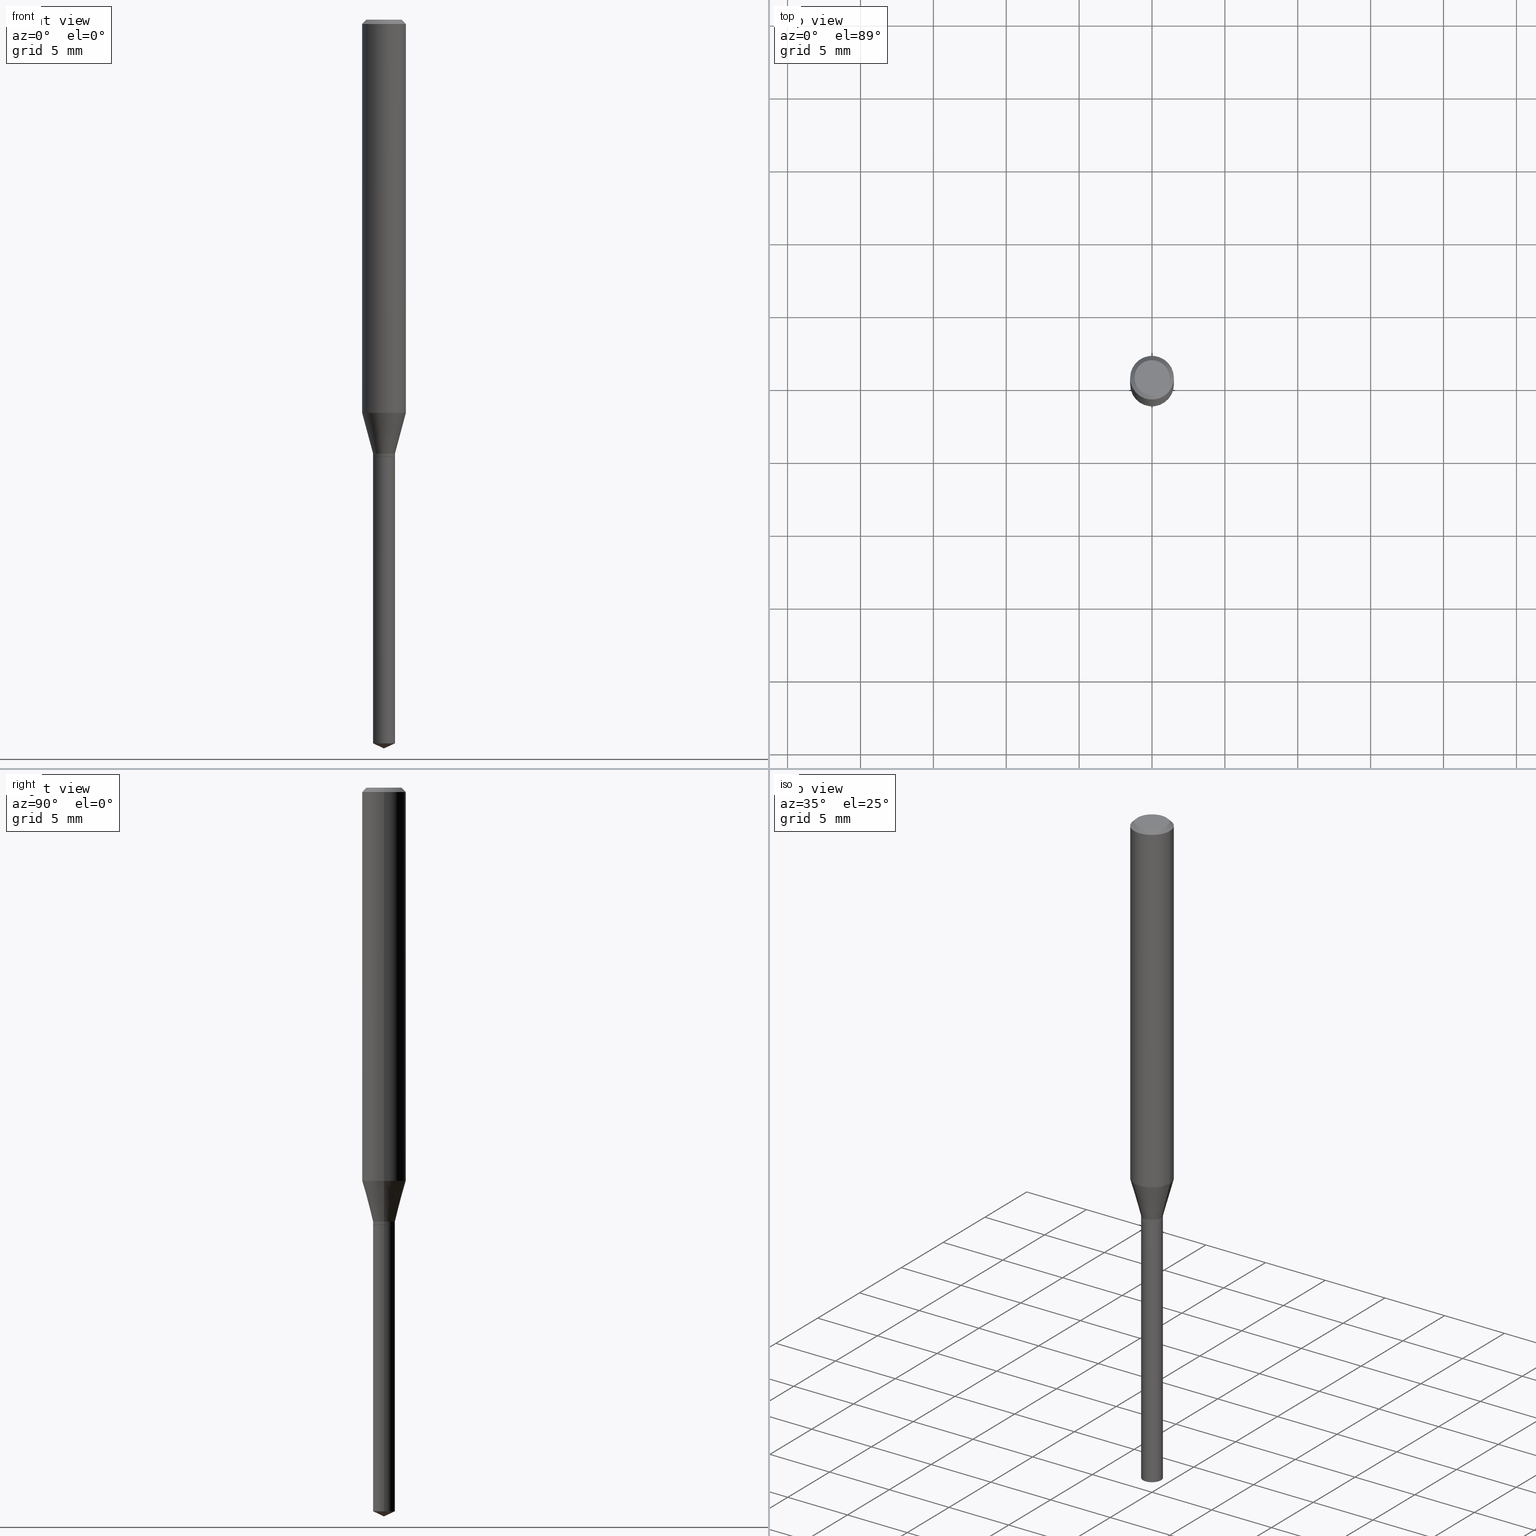
[diagram: canonical four-view strip — front | top / right | iso, engineering-drawing reading convention]
A machine part, canonical four-view strip (front | top / right | iso — engineering-drawing reading convention). The complete STEP part file that produces these views, byte-faithful:
ISO-10303-21;
HEADER;
FILE_DESCRIPTION (( 'STEP AP203' ),
    '1' );
FILE_NAME ('07885.STEP',
    '2024-04-24T05:19:50',
    ( '' ),
    ( '' ),
    'SwSTEP 2.0',
    'SolidWorks 2023',
    '' );
FILE_SCHEMA (( 'CONFIG_CONTROL_DESIGN' ));
ENDSEC;

DATA;
#1 = DIRECTION ( 'NONE',  ( -0.7071067811864326647, 7.493145998869937642E-15, 0.7071067811866621478 ) ) ;
#2 = LINE ( 'NONE', #313, #307 ) ;
#3 = LINE ( 'NONE', #391, #469 ) ;
#4 = DIRECTION ( 'NONE',  ( -2.445468806185136877E-29, 3.491481338843145188E-15, 1.000000000000000000 ) ) ;
#5 = EDGE_CURVE ( 'NONE', #267, #316, #457, .T. ) ;
#6 = FACE_OUTER_BOUND ( 'NONE', #91, .T. ) ;
#7 = AXIS2_PLACEMENT_3D ( 'NONE', #26, #58, #114 ) ;
#8 = ORIENTED_EDGE ( 'NONE', *, *, #383, .T. ) ;
#9 = ADVANCED_FACE ( 'NONE', ( #6 ), #56, .T. ) ;
#10 = AXIS2_PLACEMENT_3D ( 'NONE', #373, #274, #487 ) ;
#11 = APPROVAL_DATE_TIME ( #365, #250 ) ;
#12 = VERTEX_POINT ( 'NONE', #38 ) ;
#13 = CC_DESIGN_PERSON_AND_ORGANIZATION_ASSIGNMENT ( #481, #146, ( #25 ) ) ;
#14 = EDGE_LOOP ( 'NONE', ( #31, #453 ) ) ;
#15 = CARTESIAN_POINT ( 'NONE',  ( 2.888098660104662452E-31, -4.123439461173777798E-17, -0.01181000000000006697 ) ) ;
#16 = ADVANCED_FACE ( 'NONE', ( #430 ), #82, .T. ) ;
#17 = EDGE_LOOP ( 'NONE', ( #215, #331, #441, #47 ) ) ;
#18 = DIRECTION ( 'NONE',  ( -2.445468806185136597E-29, 3.491481338843145583E-15, 1.000000000000000000 ) ) ;
#19 = COORDINATED_UNIVERSAL_TIME_OFFSET ( 5, 0, .BEHIND. ) ;
#20 = AXIS2_PLACEMENT_3D ( 'NONE', #144, #179, #291 ) ;
#21 = ORIENTED_EDGE ( 'NONE', *, *, #199, .F. ) ;
#22 = PRODUCT_DEFINITION ( 'UNKNOWN', '', #428, #480 ) ;
#23 = PERSON_AND_ORGANIZATION ( #37, #410 ) ;
#24 = FACE_OUTER_BOUND ( 'NONE', #427, .T. ) ;
#25 = PRODUCT ( '07885', '07885', '', ( #152 ) ) ;
#26 = CARTESIAN_POINT ( 'NONE',  ( -9.896477185336934595E-30, -9.677292336186917248E-15, -1.181099999999999817 ) ) ;
#27 = CARTESIAN_POINT ( 'NONE',  ( -0.05904999999999999832, 3.711095515056362547E-16, -0.01181000000000006697 ) ) ;
#28 = VECTOR ( 'NONE', #132, 39.37007874015748143 ) ;
#29 = CALENDAR_DATE ( 2024, 24, 4 ) ;
#30 = ORIENTED_EDGE ( 'NONE', *, *, #408, .F. ) ;
#31 = ORIENTED_EDGE ( 'NONE', *, *, #425, .T. ) ;
#32 = AXIS2_PLACEMENT_3D ( 'NONE', #333, #476, #298 ) ;
#33 = CARTESIAN_POINT ( 'NONE',  ( 8.265746106709734507E-48, -1.180129479067563789E-33, -3.380025165646692144E-19 ) ) ;
#34 = ORIENTED_EDGE ( 'NONE', *, *, #61, .T. ) ;
#35 = DIRECTION ( 'NONE',  ( -2.445468806185136597E-29, 3.491481338843145583E-15, 1.000000000000000000 ) ) ;
#36 = CARTESIAN_POINT ( 'NONE',  ( -0.02904999999999999943, -3.917375944569329776E-15, -1.181099999999999817 ) ) ;
#37 = PERSON ( 'UNSPECIFIED', 'UNSPECIFIED', 'UNSPECIFIED', ('UNSPECIFIED'), ('UNSPECIFIED'), ('UNSPECIFIED') ) ;
#38 = CARTESIAN_POINT ( 'NONE',  ( 0.05904999999999999832, -4.535783407291118600E-16, -0.01181000000000006697 ) ) ;
#39 = ADVANCED_FACE ( 'NONE', ( #490 ), #268, .T. ) ;
#40 = CARTESIAN_POINT ( 'NONE',  ( 0.02954999999999999294, -7.031217075059099515E-15, -1.954720608701519868 ) ) ;
#41 = DIRECTION ( 'NONE',  ( 1.000000000000000000, -6.982962677686266711E-15, 0.000000000000000000 ) ) ;
#42 = CARTESIAN_POINT ( 'NONE',  ( -0.02955000000000001029, 2.099653784171096780E-16, -1.453545319170325076E-30 ) ) ;
#43 = DIRECTION ( 'NONE',  ( -0.9063077870366488265, 7.915267918739016209E-15, 0.4226182617407016062 ) ) ;
#44 = APPROVAL_PERSON_ORGANIZATION ( #374, #466, #370 ) ;
#45 = DIRECTION ( 'NONE',  ( 1.000000000000000000, -6.982962677686259611E-15, 0.000000000000000000 ) ) ;
#46 = DIRECTION ( 'NONE',  ( -2.445468806185136597E-29, 3.491481338843145583E-15, 1.000000000000000000 ) ) ;
#47 = ORIENTED_EDGE ( 'NONE', *, *, #77, .F. ) ;
#48 = CONICAL_SURFACE ( 'NONE', #341, 0.02955000000000001029, 0.2617993877991501295 ) ;
#49 = VECTOR ( 'NONE', #134, 39.37007874015748854 ) ;
#50 = ORIENTED_EDGE ( 'NONE', *, *, #408, .T. ) ;
#51 = EDGE_CURVE ( 'NONE', #335, #267, #109, .T. ) ;
#52 = ORIENTED_EDGE ( 'NONE', *, *, #376, .T. ) ;
#53 = DIRECTION ( 'NONE',  ( -2.445468806185136597E-29, 3.491481338843145583E-15, 1.000000000000000000 ) ) ;
#54 = ORIENTED_EDGE ( 'NONE', *, *, #445, .T. ) ;
#55 = CIRCLE ( 'NONE', #233, 0.02954999999999999988 ) ;
#56 = CONICAL_SURFACE ( 'NONE', #317, 84.42940631927342565, 1.134464013796311788 ) ;
#57 = ORIENTED_EDGE ( 'NONE', *, *, #230, .F. ) ;
#58 = DIRECTION ( 'NONE',  ( -2.438088387897960049E-29, 3.491481338843145188E-15, 1.000000000000000000 ) ) ;
#59 = DIRECTION ( 'NONE',  ( 0.000000000000000000, 0.000000000000000000, 1.000000000000000000 ) ) ;
#60 = DIRECTION ( 'NONE',  ( -1.000000000000000000, 6.982962677686265922E-15, -4.876176775795935793E-29 ) ) ;
#61 = EDGE_CURVE ( 'NONE', #446, #276, #332, .T. ) ;
#62 = APPROVAL ( #74, 'UNSPECIFIED' ) ;
#63 =( CONVERSION_BASED_UNIT ( 'INCH', #149 ) LENGTH_UNIT ( ) NAMED_UNIT ( #321 ) );
#64 = ORIENTED_EDGE ( 'NONE', *, *, #142, .T. ) ;
#65 = APPROVAL_PERSON_ORGANIZATION ( #222, #62, #171 ) ;
#66 = ADVANCED_FACE ( 'NONE', ( #310 ), #285, .T. ) ;
#67 = DIRECTION ( 'NONE',  ( -2.445468806185136877E-29, 3.491481338843145188E-15, 1.000000000000000000 ) ) ;
#68 =( LENGTH_UNIT ( ) NAMED_UNIT ( * ) SI_UNIT ( $, .METRE. ) );
#69 = ORIENTED_EDGE ( 'NONE', *, *, #295, .F. ) ;
#70 = CALENDAR_DATE ( 2024, 24, 4 ) ;
#71 = CC_DESIGN_DATE_AND_TIME_ASSIGNMENT ( #302, #292, ( #252 ) ) ;
#72 = CARTESIAN_POINT ( 'NONE',  ( -0.05905000000000006771, 4.195754854663396409E-16, -2.904631170795525045E-30 ) ) ;
#73 = CARTESIAN_POINT ( 'NONE',  ( 0.05905000000000006771, -4.123439461173745257E-16, 2.879382386107503723E-30 ) ) ;
#74 = APPROVAL_STATUS ( 'not_yet_approved' ) ;
#75 = VECTOR ( 'NONE', #232, 39.37007874015748143 ) ;
#76 = CARTESIAN_POINT ( 'NONE',  ( 0.02955000000000001029, -4.299060972517564294E-15, -1.172199999999999909 ) ) ;
#77 = EDGE_CURVE ( 'NONE', #479, #316, #55, .T. ) ;
#78 = AXIS2_PLACEMENT_3D ( 'NONE', #311, #231, #390 ) ;
#79 = APPLICATION_CONTEXT ( 'configuration controlled 3d designs of mechanical parts and assemblies' ) ;
#80 = CARTESIAN_POINT ( 'NONE',  ( 8.265746106709734507E-48, -1.180129479067563789E-33, -3.380025165646692144E-19 ) ) ;
#81 = CARTESIAN_POINT ( 'NONE',  ( 0.04724000000000000421, -3.852183633974369345E-16, -3.380025165621689721E-19 ) ) ;
#82 = CYLINDRICAL_SURFACE ( 'NONE', #417, 0.02954999999999999988 ) ;
#83 = CIRCLE ( 'NONE', #200, 0.02955000000000001029 ) ;
#84 = MANIFOLD_SOLID_BREP ( 'Body-Move/Copy2[2]', #325 ) ;
#85 = CARTESIAN_POINT ( 'NONE',  ( -0.02954999999999999294, -6.614905149516361336E-15, -1.954720608701519868 ) ) ;
#86 = ORIENTED_EDGE ( 'NONE', *, *, #287, .T. ) ;
#87 = MANIFOLD_SOLID_BREP ( 'Body-Move/Copy2[1]', #260 ) ;
#88 = CC_DESIGN_PERSON_AND_ORGANIZATION_ASSIGNMENT ( #169, #327, ( #428 ) ) ;
#89 = VERTEX_POINT ( 'NONE', #81 ) ;
#90 = PERSON_AND_ORGANIZATION_ROLE ( 'design_supplier' ) ;
#91 = EDGE_LOOP ( 'NONE', ( #133, #438, #140 ) ) ;
#92 = EDGE_LOOP ( 'NONE', ( #432, #377, #52, #50 ) ) ;
#93 = EDGE_CURVE ( 'NONE', #470, #335, #2, .T. ) ;
#94 = AXIS2_PLACEMENT_3D ( 'NONE', #421, #304, #450 ) ;
#95 = VECTOR ( 'NONE', #406, 39.37007874015748143 ) ;
#96 = PERSON_AND_ORGANIZATION ( #37, #410 ) ;
#97 = EDGE_LOOP ( 'NONE', ( #54, #100, #474, #293 ) ) ;
#98 = ORIENTED_EDGE ( 'NONE', *, *, #199, .T. ) ;
#99 = LINE ( 'NONE', #258, #95 ) ;
#100 = ORIENTED_EDGE ( 'NONE', *, *, #182, .T. ) ;
#101 = AXIS2_PLACEMENT_3D ( 'NONE', #155, #461, #240 ) ;
#102 = AXIS2_PLACEMENT_3D ( 'NONE', #407, #59, #420 ) ;
#103 = ADVANCED_FACE ( 'NONE', ( #201 ), #460, .T. ) ;
#104 = CARTESIAN_POINT ( 'NONE',  ( 2.866578534610217158E-29, -4.092714425391935472E-15, -1.172199999999999909 ) ) ;
#105 = APPLICATION_CONTEXT ( 'configuration controlled 3d designs of mechanical parts and assemblies' ) ;
#106 = CARTESIAN_POINT ( 'NONE',  ( -0.02954999999999999988, -3.913823230890528878E-15, -1.181099999999999817 ) ) ;
#107 = DIRECTION ( 'NONE',  ( 1.000000000000000000, -6.982962677686265922E-15, 4.876176775795935793E-29 ) ) ;
#108 = VERTEX_POINT ( 'NONE', #467 ) ;
#109 = CIRCLE ( 'NONE', #101, 0.02954999999999999988 ) ;
#110 = AXIS2_PLACEMENT_3D ( 'NONE', #416, #452, #107 ) ;
#111 = FACE_OUTER_BOUND ( 'NONE', #405, .T. ) ;
#112 = EDGE_LOOP ( 'NONE', ( #402, #34, #8, #379 ) ) ;
#113 = DIRECTION ( 'NONE',  ( 1.000000000000000000, -6.982962677686259611E-15, 0.000000000000000000 ) ) ;
#114 = DIRECTION ( 'NONE',  ( 1.000000000000000000, -6.982962677686265922E-15, 4.876176775795935793E-29 ) ) ;
#115 = CARTESIAN_POINT ( 'NONE',  ( 2.888343206985264877E-29, -4.123788609307639024E-15, -1.181099999999999817 ) ) ;
#116 = DIRECTION ( 'NONE',  ( 1.000000000000000000, -6.982962677686265922E-15, 4.876176775795935793E-29 ) ) ;
#117 = DIRECTION ( 'NONE',  ( -2.445468806185136597E-29, 3.491481338843145583E-15, 1.000000000000000000 ) ) ;
#118 = DIRECTION ( 'NONE',  ( -2.445468806185136877E-29, 3.491481338843145188E-15, 1.000000000000000000 ) ) ;
#119 = CIRCLE ( 'NONE', #485, 0.05905000000000013710 ) ;
#120 = VERTEX_POINT ( 'NONE', #123 ) ;
#121 = DIRECTION ( 'NONE',  ( 2.445468806185136597E-29, -3.491481338843145583E-15, -1.000000000000000000 ) ) ;
#122 = CARTESIAN_POINT ( 'NONE',  ( 2.887120472582171515E-29, -4.122042868638216732E-15, -1.180599999999999650 ) ) ;
#123 = CARTESIAN_POINT ( 'NONE',  ( -0.02955000000000001029, -3.897413268597965956E-15, -1.172199999999999909 ) ) ;
#124 = EDGE_CURVE ( 'NONE', #385, #409, #424, .T. ) ;
#125 = ADVANCED_BREP_SHAPE_REPRESENTATION ( '07885', ( #87, #84, #102 ), #128 ) ;
#126 = CARTESIAN_POINT ( 'NONE',  ( -9.146439411113230710E-28, 1.305869142145323662E-13, 37.40157874015748263 ) ) ;
#127 = ORIENTED_EDGE ( 'NONE', *, *, #376, .F. ) ;
#128 =( GEOMETRIC_REPRESENTATION_CONTEXT ( 3 ) GLOBAL_UNCERTAINTY_ASSIGNED_CONTEXT ( ( #204 ) ) GLOBAL_UNIT_ASSIGNED_CONTEXT ( ( #63, #305, #226 ) ) REPRESENTATION_CONTEXT ( 'NONE', 'WORKASPACE' ) );
#129 = VECTOR ( 'NONE', #1, 39.37007874015748854 ) ;
#130 = EDGE_LOOP ( 'NONE', ( #86, #363 ) ) ;
#131 = EDGE_LOOP ( 'NONE', ( #259, #443, #209 ) ) ;
#132 = DIRECTION ( 'NONE',  ( -0.7071067811865454633, 2.468850131082235367E-15, -0.7071067811865495711 ) ) ;
#133 = ORIENTED_EDGE ( 'NONE', *, *, #93, .F. ) ;
#134 = DIRECTION ( 'NONE',  ( 0.7071067811864326647, -2.468850131081054837E-15, 0.7071067811866621478 ) ) ;
#135 = CIRCLE ( 'NONE', #489, 0.04724000000000000421 ) ;
#136 = CC_DESIGN_APPROVAL ( #62, ( #22 ) ) ;
#137 = VERTEX_POINT ( 'NONE', #195 ) ;
#138 = DIRECTION ( 'NONE',  ( 1.000000000000000000, -6.982962677686266711E-15, 0.000000000000000000 ) ) ;
#139 = COORDINATED_UNIVERSAL_TIME_OFFSET ( 5, 0, .BEHIND. ) ;
#140 = ORIENTED_EDGE ( 'NONE', *, *, #51, .F. ) ;
#141 = DIRECTION ( 'NONE',  ( -2.445468806185136597E-29, 3.491481338843145583E-15, 1.000000000000000000 ) ) ;
#142 = EDGE_CURVE ( 'NONE', #89, #12, #350, .T. ) ;
#143 = APPROVAL_ROLE ( '' ) ;
#144 = CARTESIAN_POINT ( 'NONE',  ( 2.888343206985264877E-29, -4.123788609307639024E-15, -1.181099999999999817 ) ) ;
#145 = CARTESIAN_POINT ( 'NONE',  ( 2.888098660104662452E-31, -4.123439461173777798E-17, -0.01181000000000006697 ) ) ;
#146 = PERSON_AND_ORGANIZATION_ROLE ( 'design_owner' ) ;
#147 = DIRECTION ( 'NONE',  ( -2.445468806185136597E-29, 3.491481338843145583E-15, 1.000000000000000000 ) ) ;
#148 = ADVANCED_FACE ( 'NONE', ( #229 ), #270, .F. ) ;
#149 = LENGTH_MEASURE_WITH_UNIT ( LENGTH_MEASURE( 0.02539999999999999897 ), #68 );
#150 = PERSON_AND_ORGANIZATION_ROLE ( 'classification_officer' ) ;
#151 = CC_DESIGN_DATE_AND_TIME_ASSIGNMENT ( #412, #205, ( #22 ) ) ;
#152 = MECHANICAL_CONTEXT ( 'NONE', #79, 'mechanical' ) ;
#153 = AXIS2_PLACEMENT_3D ( 'NONE', #369, #18, #175 ) ;
#154 = LOCAL_TIME ( 1, 19, 50.00000000000000000, #219 ) ;
#155 = CARTESIAN_POINT ( 'NONE',  ( 4.780208273386789219E-29, -6.824870527933470693E-15, -1.954720608701519868 ) ) ;
#156 = CARTESIAN_POINT ( 'NONE',  ( 2.888343206985264316E-29, -4.123788609307638235E-15, -1.181099999999999817 ) ) ;
#157 = CARTESIAN_POINT ( 'NONE',  ( 0.02954999999999999988, -4.330135156433267846E-15, -1.181099999999999817 ) ) ;
#158 = DIRECTION ( 'NONE',  ( -2.445468806185136597E-29, 3.491481338843145583E-15, 1.000000000000000000 ) ) ;
#159 = FACE_OUTER_BOUND ( 'NONE', #399, .T. ) ;
#160 = CONICAL_SURFACE ( 'NONE', #243, 0.02955000000000001029, 0.2617993877991501295 ) ;
#161 = DIRECTION ( 'NONE',  ( -2.445468806185136597E-29, 3.491481338843145583E-15, 1.000000000000000000 ) ) ;
#162 = ADVANCED_FACE ( 'NONE', ( #340 ), #48, .T. ) ;
#163 = DIRECTION ( 'NONE',  ( 1.000000000000000000, -6.982962677686261977E-15, 0.000000000000000000 ) ) ;
#164 = DIRECTION ( 'NONE',  ( -2.445468806185136597E-29, 3.491481338843145583E-15, 1.000000000000000000 ) ) ;
#165 = EDGE_LOOP ( 'NONE', ( #322, #64, #290, #127 ) ) ;
#166 = AXIS2_PLACEMENT_3D ( 'NONE', #357, #117, #163 ) ;
#167 = CIRCLE ( 'NONE', #455, 0.05904999999999999832 ) ;
#168 = EDGE_CURVE ( 'NONE', #276, #446, #277, .T. ) ;
#169 = PERSON_AND_ORGANIZATION ( #37, #410 ) ;
#170 = ORIENTED_EDGE ( 'NONE', *, *, #256, .F. ) ;
#171 = APPROVAL_ROLE ( '' ) ;
#172 = ORIENTED_EDGE ( 'NONE', *, *, #256, .T. ) ;
#173 = CARTESIAN_POINT ( 'NONE',  ( -0.05904999999999999832, -1.455200734719437602E-15, -0.01181000000000006697 ) ) ;
#174 = ORIENTED_EDGE ( 'NONE', *, *, #193, .F. ) ;
#175 = DIRECTION ( 'NONE',  ( 1.000000000000000000, -6.982962677686261977E-15, 0.000000000000000000 ) ) ;
#176 = AXIS2_PLACEMENT_3D ( 'NONE', #126, #434, #239 ) ;
#177 = EDGE_LOOP ( 'NONE', ( #170, #254, #247, #394 ) ) ;
#178 = CARTESIAN_POINT ( 'NONE',  ( 2.866578534610217158E-29, -4.092714425391935472E-15, -1.172199999999999909 ) ) ;
#179 = DIRECTION ( 'NONE',  ( -2.445468806185136597E-29, 3.491481338843145583E-15, 1.000000000000000000 ) ) ;
#180 = FACE_OUTER_BOUND ( 'NONE', #436, .T. ) ;
#181 = VECTOR ( 'NONE', #359, 39.37007874015748143 ) ;
#182 = EDGE_CURVE ( 'NONE', #335, #479, #224, .T. ) ;
#183 = VECTOR ( 'NONE', #67, 39.37007874015748143 ) ;
#184 = PLANE ( 'NONE',  #78 ) ;
#185 = DIRECTION ( 'NONE',  ( 1.000000000000000000, -6.982962677686259611E-15, 0.000000000000000000 ) ) ;
#186 = ORIENTED_EDGE ( 'NONE', *, *, #214, .T. ) ;
#187 = CYLINDRICAL_SURFACE ( 'NONE', #301, 0.02955000000000001029 ) ;
#188 = ORIENTED_EDGE ( 'NONE', *, *, #463, .F. ) ;
#189 = DIRECTION ( 'NONE',  ( -2.445468806185136597E-29, 3.491481338843145583E-15, 1.000000000000000000 ) ) ;
#190 = CONICAL_SURFACE ( 'NONE', #176, 84.42940631927342565, 1.134464013796311788 ) ;
#191 = CARTESIAN_POINT ( 'NONE',  ( 4.813905344975441835E-29, -6.872981015512731707E-15, -1.968500000000000139 ) ) ;
#192 = EDGE_LOOP ( 'NONE', ( #257, #172, #472, #188 ) ) ;
#193 = EDGE_CURVE ( 'NONE', #361, #12, #393, .T. ) ;
#194 = DIRECTION ( 'NONE',  ( 1.000000000000000000, -6.982962677686266711E-15, 4.876185090822587894E-29 ) ) ;
#195 = CARTESIAN_POINT ( 'NONE',  ( 0.02955000000000001029, -4.328389415763845553E-15, -1.180599999999999650 ) ) ;
#196 = DIRECTION ( 'NONE',  ( -2.445468806185136877E-29, 3.491481338843145188E-15, 1.000000000000000000 ) ) ;
#197 = DIRECTION ( 'NONE',  ( -2.445468806185136597E-29, 3.491481338843145583E-15, 1.000000000000000000 ) ) ;
#198 = DIRECTION ( 'NONE',  ( 1.000000000000000000, -6.982962677686261977E-15, 0.000000000000000000 ) ) ;
#199 = EDGE_CURVE ( 'NONE', #108, #120, #234, .T. ) ;
#200 = AXIS2_PLACEMENT_3D ( 'NONE', #315, #164, #45 ) ;
#201 = FACE_OUTER_BOUND ( 'NONE', #17, .T. ) ;
#202 = PRODUCT_RELATED_PRODUCT_CATEGORY ( 'detail', '', ( #25 ) ) ;
#203 = DIRECTION ( 'NONE',  ( -2.445468806185136597E-29, 3.491481338843145583E-15, 1.000000000000000000 ) ) ;
#204 = UNCERTAINTY_MEASURE_WITH_UNIT (LENGTH_MEASURE( 1.000000000000000082E-05 ), #63, 'distance_accuracy_value', 'NONE');
#205 = DATE_TIME_ROLE ( 'creation_date' ) ;
#206 = VERTEX_POINT ( 'NONE', #465 ) ;
#207 = VECTOR ( 'NONE', #4, 39.37007874015748143 ) ;
#208 = CC_DESIGN_APPROVAL ( #466, ( #252 ) ) ;
#209 = ORIENTED_EDGE ( 'NONE', *, *, #445, .F. ) ;
#210 = CARTESIAN_POINT ( 'NONE',  ( 0.000000000000000000, 0.000000000000000000, 0.000000000000000000 ) ) ;
#211 = ORIENTED_EDGE ( 'NONE', *, *, #230, .T. ) ;
#212 = DIRECTION ( 'NONE',  ( 1.000000000000000000, -6.982962677686266711E-15, 4.876176775795936353E-29 ) ) ;
#213 = APPROVAL_STATUS ( 'not_yet_approved' ) ;
#214 = EDGE_CURVE ( 'NONE', #137, #108, #286, .T. ) ;
#215 = ORIENTED_EDGE ( 'NONE', *, *, #182, .F. ) ;
#216 = LINE ( 'NONE', #27, #28 ) ;
#217 = CYLINDRICAL_SURFACE ( 'NONE', #462, 0.05905000000000006771 ) ;
#218 = DIRECTION ( 'NONE',  ( 1.000000000000000000, -6.982962677686266711E-15, 4.876185090822587894E-29 ) ) ;
#219 = COORDINATED_UNIVERSAL_TIME_OFFSET ( 5, 0, .BEHIND. ) ;
#220 = ORIENTED_EDGE ( 'NONE', *, *, #168, .T. ) ;
#221 = FACE_OUTER_BOUND ( 'NONE', #14, .T. ) ;
#222 = PERSON_AND_ORGANIZATION ( #37, #410 ) ;
#223 = AXIS2_PLACEMENT_3D ( 'NONE', #384, #422, #343 ) ;
#224 = LINE ( 'NONE', #106, #183 ) ;
#225 = LOCAL_TIME ( 1, 19, 50.00000000000000000, #289 ) ;
#226 =( NAMED_UNIT ( * ) SI_UNIT ( $, .STERADIAN. ) SOLID_ANGLE_UNIT ( ) );
#227 = DIRECTION ( 'NONE',  ( 0.2588190451025214611, 1.565188264969621573E-15, 0.9659258262890682012 ) ) ;
#228 = APPROVAL_DATE_TIME ( #415, #466 ) ;
#229 = FACE_OUTER_BOUND ( 'NONE', #130, .T. ) ;
#230 = EDGE_CURVE ( 'NONE', #137, #206, #323, .T. ) ;
#231 = DIRECTION ( 'NONE',  ( 2.438088387897960049E-29, -3.491481338843145188E-15, -1.000000000000000000 ) ) ;
#232 = DIRECTION ( 'NONE',  ( -2.445468806185136877E-29, 3.491481338843145188E-15, 1.000000000000000000 ) ) ;
#233 = AXIS2_PLACEMENT_3D ( 'NONE', #156, #395, #387 ) ;
#234 = LINE ( 'NONE', #42, #207 ) ;
#235 = CIRCLE ( 'NONE', #32, 0.05905000000000013710 ) ;
#236 = DIRECTION ( 'NONE',  ( -2.445468806185136597E-29, 3.491481338843145583E-15, 1.000000000000000000 ) ) ;
#237 = ADVANCED_FACE ( 'NONE', ( #358 ), #190, .T. ) ;
#238 = CARTESIAN_POINT ( 'NONE',  ( 2.888343206985264877E-29, -4.123788609307639024E-15, -1.181099999999999817 ) ) ;
#239 = DIRECTION ( 'NONE',  ( 1.000000000000000000, -6.982962677686266711E-15, 0.000000000000000000 ) ) ;
#240 = DIRECTION ( 'NONE',  ( 1.000000000000000000, -6.982962677686261977E-15, 0.000000000000000000 ) ) ;
#241 = DIRECTION ( 'NONE',  ( -1.000000000000000000, 6.982962677686266711E-15, 0.000000000000000000 ) ) ;
#242 = CARTESIAN_POINT ( 'NONE',  ( 0.05904999999999999832, -4.463468013801466955E-16, -0.01181000000000006697 ) ) ;
#243 = AXIS2_PLACEMENT_3D ( 'NONE', #178, #141, #255 ) ;
#244 = LOCAL_TIME ( 1, 19, 50.00000000000000000, #139 ) ;
#245 = ORIENTED_EDGE ( 'NONE', *, *, #431, .T. ) ;
#246 = PRODUCT_DEFINITION_SHAPE ( 'NONE', 'NONE',  #22 ) ;
#247 = ORIENTED_EDGE ( 'NONE', *, *, #463, .T. ) ;
#248 = SECURITY_CLASSIFICATION_LEVEL ( 'unclassified' ) ;
#249 = ORIENTED_EDGE ( 'NONE', *, *, #124, .F. ) ;
#250 = APPROVAL ( #299, 'UNSPECIFIED' ) ;
#251 = AXIS2_PLACEMENT_3D ( 'NONE', #122, #35, #352 ) ;
#252 = SECURITY_CLASSIFICATION ( '', '', #248 ) ;
#253 = CALENDAR_DATE ( 2024, 24, 4 ) ;
#254 = ORIENTED_EDGE ( 'NONE', *, *, #482, .T. ) ;
#255 = DIRECTION ( 'NONE',  ( 1.000000000000000000, -6.982962677686259611E-15, 0.000000000000000000 ) ) ;
#256 = EDGE_CURVE ( 'NONE', #120, #385, #3, .T. ) ;
#257 = ORIENTED_EDGE ( 'NONE', *, *, #400, .T. ) ;
#258 = CARTESIAN_POINT ( 'NONE',  ( 4.813905344975441835E-29, -6.872981015512731707E-15, -1.968500000000000139 ) ) ;
#259 = ORIENTED_EDGE ( 'NONE', *, *, #435, .F. ) ;
#260 = CLOSED_SHELL ( 'NONE', ( #16, #237, #9, #103, #458 ) ) ;
#261 = CALENDAR_DATE ( 2024, 24, 4 ) ;
#262 = DIRECTION ( 'NONE',  ( -2.445468806185136597E-29, 3.491481338843145583E-15, 1.000000000000000000 ) ) ;
#263 = ORIENTED_EDGE ( 'NONE', *, *, #400, .F. ) ;
#264 = CARTESIAN_POINT ( 'NONE',  ( 4.132873053354867254E-48, -5.900647395337818946E-34, -1.690012582823346072E-19 ) ) ;
#265 = APPLICATION_PROTOCOL_DEFINITION ( 'international standard', 'config_control_design', 1994, #105 ) ;
#266 = LINE ( 'NONE', #76, #381 ) ;
#267 = VERTEX_POINT ( 'NONE', #40 ) ;
#268 = CONICAL_SURFACE ( 'NONE', #433, 0.02904999999999999943, 0.7853981633972860754 ) ;
#269 = CIRCLE ( 'NONE', #342, 0.04724000000000000421 ) ;
#270 = PLANE ( 'NONE',  #372 ) ;
#271 = CARTESIAN_POINT ( 'NONE',  ( 0.000000000000000000, 0.000000000000000000, 0.000000000000000000 ) ) ;
#272 = DIRECTION ( 'NONE',  ( 1.000000000000000000, -6.982962677686261189E-15, 0.000000000000000000 ) ) ;
#273 = ADVANCED_FACE ( 'NONE', ( #159 ), #426, .F. ) ;
#274 = DIRECTION ( 'NONE',  ( -2.445468806185136597E-29, 3.491481338843145583E-15, 1.000000000000000000 ) ) ;
#275 = DIRECTION ( 'NONE',  ( -2.445468806185136597E-29, 3.491481338843145583E-15, 1.000000000000000000 ) ) ;
#276 = VERTEX_POINT ( 'NONE', #309 ) ;
#277 = CIRCLE ( 'NONE', #94, 0.02904999999999999943 ) ;
#278 = VECTOR ( 'NONE', #196, 39.37007874015748143 ) ;
#279 = CC_DESIGN_SECURITY_CLASSIFICATION ( #252, ( #428 ) ) ;
#280 = EDGE_LOOP ( 'NONE', ( #249, #297, #366, #30 ) ) ;
#281 = DIRECTION ( 'NONE',  ( -2.445468806185136877E-29, 3.491481338843145188E-15, 1.000000000000000000 ) ) ;
#282 = DIRECTION ( 'NONE',  ( -0.2588190451025214611, 5.211531920934551042E-15, 0.9659258262890682012 ) ) ;
#283 = CARTESIAN_POINT ( 'NONE',  ( -9.146439411113230710E-28, 1.305869142145323662E-13, 37.40157874015748263 ) ) ;
#284 = ORIENTED_EDGE ( 'NONE', *, *, #61, .F. ) ;
#285 = CONICAL_SURFACE ( 'NONE', #347, 0.05904999999999999832, 0.7853981633974453924 ) ;
#286 = CIRCLE ( 'NONE', #251, 0.02955000000000001029 ) ;
#287 = EDGE_CURVE ( 'NONE', #288, #89, #269, .T. ) ;
#288 = VERTEX_POINT ( 'NONE', #339 ) ;
#289 = COORDINATED_UNIVERSAL_TIME_OFFSET ( 5, 0, .BEHIND. ) ;
#290 = ORIENTED_EDGE ( 'NONE', *, *, #295, .T. ) ;
#291 = DIRECTION ( 'NONE',  ( 1.000000000000000000, -6.982962677686261189E-15, 0.000000000000000000 ) ) ;
#292 = DATE_TIME_ROLE ( 'classification_date' ) ;
#293 = ORIENTED_EDGE ( 'NONE', *, *, #5, .F. ) ;
#294 = CYLINDRICAL_SURFACE ( 'NONE', #356, 0.05905000000000006771 ) ;
#295 = EDGE_CURVE ( 'NONE', #12, #409, #167, .T. ) ;
#296 = CIRCLE ( 'NONE', #318, 0.05904999999999999832 ) ;
#297 = ORIENTED_EDGE ( 'NONE', *, *, #314, .T. ) ;
#298 = DIRECTION ( 'NONE',  ( 1.000000000000000000, -6.982962677686264344E-15, 0.000000000000000000 ) ) ;
#299 = APPROVAL_STATUS ( 'not_yet_approved' ) ;
#300 = LINE ( 'NONE', #367, #49 ) ;
#301 = AXIS2_PLACEMENT_3D ( 'NONE', #271, #345, #116 ) ;
#302 = DATE_AND_TIME ( #29, #154 ) ;
#303 = EDGE_CURVE ( 'NONE', #89, #288, #135, .T. ) ;
#304 = DIRECTION ( 'NONE',  ( -2.445468806185136597E-29, 3.491481338843145583E-15, 1.000000000000000000 ) ) ;
#305 =( NAMED_UNIT ( * ) PLANE_ANGLE_UNIT ( ) SI_UNIT ( $, .RADIAN. ) );
#306 = EDGE_CURVE ( 'NONE', #446, #108, #349, .T. ) ;
#307 = VECTOR ( 'NONE', #43, 39.37007874015748143 ) ;
#308 = AXIS2_PLACEMENT_3D ( 'NONE', #104, #262, #404 ) ;
#309 = CARTESIAN_POINT ( 'NONE',  ( 0.02904999999999999943, -4.326643675094424839E-15, -1.181099999999999817 ) ) ;
#310 = FACE_OUTER_BOUND ( 'NONE', #92, .T. ) ;
#311 = CARTESIAN_POINT ( 'NONE',  ( 6.700716688756018702E-29, 1.335747203411246337E-15, -1.181099999999999817 ) ) ;
#312 = CARTESIAN_POINT ( 'NONE',  ( 2.597343426536488625E-29, -3.708318045759818038E-15, -1.062104501176717841 ) ) ;
#313 = CARTESIAN_POINT ( 'NONE',  ( 4.813905344975441835E-29, -6.872981015512731707E-15, -1.968500000000000139 ) ) ;
#314 = EDGE_CURVE ( 'NONE', #385, #361, #119, .T. ) ;
#315 = CARTESIAN_POINT ( 'NONE',  ( 2.887120472582171515E-29, -4.122042868638216732E-15, -1.180599999999999650 ) ) ;
#316 = VERTEX_POINT ( 'NONE', #157 ) ;
#317 = AXIS2_PLACEMENT_3D ( 'NONE', #283, #203, #41 ) ;
#318 = AXIS2_PLACEMENT_3D ( 'NONE', #15, #329, #138 ) ;
#319 = CC_DESIGN_APPROVAL ( #250, ( #428 ) ) ;
#320 = CARTESIAN_POINT ( 'NONE',  ( 2.888098660104662452E-31, -4.123439461173777798E-17, -0.01181000000000006697 ) ) ;
#321 = DIMENSIONAL_EXPONENTS ( 1.000000000000000000, 0.000000000000000000, 0.000000000000000000, 0.000000000000000000, 0.000000000000000000, 0.000000000000000000, 0.000000000000000000 ) ;
#322 = ORIENTED_EDGE ( 'NONE', *, *, #303, .F. ) ;
#323 = LINE ( 'NONE', #468, #397 ) ;
#324 = EDGE_CURVE ( 'NONE', #108, #137, #83, .T. ) ;
#325 = CLOSED_SHELL ( 'NONE', ( #396, #477, #338, #351, #451, #488, #162, #414, #66, #148, #273, #39 ) ) ;
#326 = CONICAL_SURFACE ( 'NONE', #223, 0.05904999999999999832, 0.7853981633974453924 ) ;
#327 = PERSON_AND_ORGANIZATION_ROLE ( 'creator' ) ;
#328 = ORIENTED_EDGE ( 'NONE', *, *, #168, .F. ) ;
#329 = DIRECTION ( 'NONE',  ( -2.445468806185136597E-29, 3.491481338843145583E-15, 1.000000000000000000 ) ) ;
#330 = ORIENTED_EDGE ( 'NONE', *, *, #124, .T. ) ;
#331 = ORIENTED_EDGE ( 'NONE', *, *, #51, .T. ) ;
#332 = CIRCLE ( 'NONE', #388, 0.02904999999999999943 ) ;
#333 = CARTESIAN_POINT ( 'NONE',  ( 2.597343426536488625E-29, -3.708318045759818038E-15, -1.062104501176717841 ) ) ;
#334 = DATE_AND_TIME ( #261, #411 ) ;
#335 = VERTEX_POINT ( 'NONE', #85 ) ;
#336 = DIRECTION ( 'NONE',  ( -2.445468806185136597E-29, 3.491481338843145583E-15, 1.000000000000000000 ) ) ;
#337 = CARTESIAN_POINT ( 'NONE',  ( 0.05905000000000013710, -4.120661991877192958E-15, -1.062104501176717841 ) ) ;
#338 = ADVANCED_FACE ( 'NONE', ( #473 ), #217, .T. ) ;
#339 = CARTESIAN_POINT ( 'NONE',  ( -0.04724000000000000421, 3.504923541997677355E-16, -3.380025165670481712E-19 ) ) ;
#340 = FACE_OUTER_BOUND ( 'NONE', #177, .T. ) ;
#341 = AXIS2_PLACEMENT_3D ( 'NONE', #483, #147, #185 ) ;
#342 = AXIS2_PLACEMENT_3D ( 'NONE', #80, #275, #218 ) ;
#343 = DIRECTION ( 'NONE',  ( -1.000000000000000000, 6.982962677686266711E-15, 0.000000000000000000 ) ) ;
#344 = SHAPE_DEFINITION_REPRESENTATION ( #246, #125 ) ;
#345 = DIRECTION ( 'NONE',  ( -2.445468806185136597E-29, 3.491481338843145583E-15, 1.000000000000000000 ) ) ;
#346 = DIRECTION ( 'NONE',  ( -2.445468806185136597E-29, 3.491481338843145583E-15, 1.000000000000000000 ) ) ;
#347 = AXIS2_PLACEMENT_3D ( 'NONE', #320, #121, #241 ) ;
#348 = CIRCLE ( 'NONE', #362, 0.02955000000000001029 ) ;
#349 = LINE ( 'NONE', #36, #129 ) ;
#350 = LINE ( 'NONE', #242, #181 ) ;
#351 = ADVANCED_FACE ( 'NONE', ( #448 ), #160, .T. ) ;
#352 = DIRECTION ( 'NONE',  ( 1.000000000000000000, -6.982962677686259611E-15, 0.000000000000000000 ) ) ;
#353 = DIRECTION ( 'NONE',  ( 1.000000000000000000, -6.982962677686264344E-15, 0.000000000000000000 ) ) ;
#354 = ORIENTED_EDGE ( 'NONE', *, *, #306, .T. ) ;
#355 = ORIENTED_EDGE ( 'NONE', *, *, #482, .F. ) ;
#356 = AXIS2_PLACEMENT_3D ( 'NONE', #442, #53, #212 ) ;
#357 = CARTESIAN_POINT ( 'NONE',  ( 2.888343206985264877E-29, -4.123788609307639024E-15, -1.181099999999999817 ) ) ;
#358 = FACE_OUTER_BOUND ( 'NONE', #131, .T. ) ;
#359 = DIRECTION ( 'NONE',  ( 0.7071067811865454633, -7.319954787623248157E-15, -0.7071067811865495711 ) ) ;
#360 = CALENDAR_DATE ( 2024, 24, 4 ) ;
#361 = VERTEX_POINT ( 'NONE', #337 ) ;
#362 = AXIS2_PLACEMENT_3D ( 'NONE', #456, #236, #113 ) ;
#363 = ORIENTED_EDGE ( 'NONE', *, *, #303, .T. ) ;
#364 = APPROVAL_PERSON_ORGANIZATION ( #23, #250, #143 ) ;
#365 = DATE_AND_TIME ( #360, #225 ) ;
#366 = ORIENTED_EDGE ( 'NONE', *, *, #193, .T. ) ;
#367 = CARTESIAN_POINT ( 'NONE',  ( 0.02904999999999999943, -4.326643675094424839E-15, -1.181099999999999817 ) ) ;
#368 = ORIENTED_EDGE ( 'NONE', *, *, #214, .F. ) ;
#369 = CARTESIAN_POINT ( 'NONE',  ( 2.888343206985264316E-29, -4.123788609307638235E-15, -1.181099999999999817 ) ) ;
#370 = APPROVAL_ROLE ( '' ) ;
#371 = ORIENTED_EDGE ( 'NONE', *, *, #383, .F. ) ;
#372 = AXIS2_PLACEMENT_3D ( 'NONE', #264, #413, #60 ) ;
#373 = CARTESIAN_POINT ( 'NONE',  ( 4.780208273386789219E-29, -6.824870527933470693E-15, -1.954720608701519868 ) ) ;
#374 = PERSON_AND_ORGANIZATION ( #37, #410 ) ;
#375 = APPROVAL_DATE_TIME ( #334, #62 ) ;
#376 = EDGE_CURVE ( 'NONE', #288, #409, #216, .T. ) ;
#377 = ORIENTED_EDGE ( 'NONE', *, *, #287, .F. ) ;
#378 = CARTESIAN_POINT ( 'NONE',  ( -0.05905000000000013710, -3.288742560293478151E-15, -1.062104501176717841 ) ) ;
#379 = ORIENTED_EDGE ( 'NONE', *, *, #324, .F. ) ;
#380 = COORDINATED_UNIVERSAL_TIME_OFFSET ( 5, 0, .BEHIND. ) ;
#381 = VECTOR ( 'NONE', #227, 39.37007874015747433 ) ;
#382 = LOCAL_TIME ( 1, 19, 50.00000000000000000, #380 ) ;
#383 = EDGE_CURVE ( 'NONE', #276, #137, #300, .T. ) ;
#384 = CARTESIAN_POINT ( 'NONE',  ( 2.888098660104662452E-31, -4.123439461173777798E-17, -0.01181000000000006697 ) ) ;
#385 = VERTEX_POINT ( 'NONE', #378 ) ;
#386 = DIRECTION ( 'NONE',  ( 1.000000000000000000, -6.982962677686266711E-15, 0.000000000000000000 ) ) ;
#387 = DIRECTION ( 'NONE',  ( 1.000000000000000000, -6.982962677686261977E-15, 0.000000000000000000 ) ) ;
#388 = AXIS2_PLACEMENT_3D ( 'NONE', #115, #161, #272 ) ;
#389 = CIRCLE ( 'NONE', #153, 0.02954999999999999988 ) ;
#390 = DIRECTION ( 'NONE',  ( -1.000000000000000000, 6.982962677686265922E-15, -4.876176775795935793E-29 ) ) ;
#391 = CARTESIAN_POINT ( 'NONE',  ( -0.02955000000000001029, -3.882749046974825326E-15, -1.172199999999999909 ) ) ;
#392 = DIRECTION ( 'NONE',  ( 1.000000000000000000, -6.982962677686261189E-15, 0.000000000000000000 ) ) ;
#393 = LINE ( 'NONE', #73, #278 ) ;
#394 = ORIENTED_EDGE ( 'NONE', *, *, #314, .F. ) ;
#395 = DIRECTION ( 'NONE',  ( -2.445468806185136597E-29, 3.491481338843145583E-15, 1.000000000000000000 ) ) ;
#396 = ADVANCED_FACE ( 'NONE', ( #24 ), #447, .T. ) ;
#397 = VECTOR ( 'NONE', #118, 39.37007874015748143 ) ;
#398 = CARTESIAN_POINT ( 'NONE',  ( 2.888343206985264877E-29, -4.123788609307639024E-15, -1.181099999999999817 ) ) ;
#399 = EDGE_LOOP ( 'NONE', ( #328, #284 ) ) ;
#400 = EDGE_CURVE ( 'NONE', #206, #120, #440, .T. ) ;
#401 = PERSON_AND_ORGANIZATION ( #37, #410 ) ;
#402 = ORIENTED_EDGE ( 'NONE', *, *, #306, .F. ) ;
#403 = ORIENTED_EDGE ( 'NONE', *, *, #324, .T. ) ;
#404 = DIRECTION ( 'NONE',  ( 1.000000000000000000, -6.982962677686259611E-15, 0.000000000000000000 ) ) ;
#405 = EDGE_LOOP ( 'NONE', ( #186, #98, #263, #57 ) ) ;
#406 = DIRECTION ( 'NONE',  ( 0.9063077870366488265, -4.853149677051364590E-15, 0.4226182617407016062 ) ) ;
#407 = CARTESIAN_POINT ( 'NONE',  ( 0.000000000000000000, 0.000000000000000000, 0.000000000000000000 ) ) ;
#408 = EDGE_CURVE ( 'NONE', #409, #12, #296, .T. ) ;
#409 = VERTEX_POINT ( 'NONE', #173 ) ;
#410 = ORGANIZATION ( 'UNSPECIFIED', 'UNSPECIFIED', '' ) ;
#411 = LOCAL_TIME ( 1, 19, 50.00000000000000000, #19 ) ;
#412 = DATE_AND_TIME ( #253, #244 ) ;
#413 = DIRECTION ( 'NONE',  ( 2.438088387897960049E-29, -3.491481338843145188E-15, -1.000000000000000000 ) ) ;
#414 = ADVANCED_FACE ( 'NONE', ( #475 ), #294, .T. ) ;
#415 = DATE_AND_TIME ( #70, #382 ) ;
#416 = CARTESIAN_POINT ( 'NONE',  ( 0.000000000000000000, 0.000000000000000000, 0.000000000000000000 ) ) ;
#417 = AXIS2_PLACEMENT_3D ( 'NONE', #398, #46, #198 ) ;
#418 = CIRCLE ( 'NONE', #10, 0.02954999999999999988 ) ;
#419 = CC_DESIGN_PERSON_AND_ORGANIZATION_ASSIGNMENT ( #96, #478, ( #22 ) ) ;
#420 = DIRECTION ( 'NONE',  ( 1.000000000000000000, 0.000000000000000000, 0.000000000000000000 ) ) ;
#421 = CARTESIAN_POINT ( 'NONE',  ( 2.888343206985264877E-29, -4.123788609307639024E-15, -1.181099999999999817 ) ) ;
#422 = DIRECTION ( 'NONE',  ( 2.445468806185136597E-29, -3.491481338843145583E-15, -1.000000000000000000 ) ) ;
#423 = FACE_OUTER_BOUND ( 'NONE', #165, .T. ) ;
#424 = LINE ( 'NONE', #72, #75 ) ;
#425 = EDGE_CURVE ( 'NONE', #316, #479, #389, .T. ) ;
#426 = PLANE ( 'NONE',  #7 ) ;
#427 = EDGE_LOOP ( 'NONE', ( #220, #354, #368, #371 ) ) ;
#428 = PRODUCT_DEFINITION_FORMATION_WITH_SPECIFIED_SOURCE ( 'ANY', '', #25, .NOT_KNOWN. ) ;
#429 = CC_DESIGN_PERSON_AND_ORGANIZATION_ASSIGNMENT ( #401, #150, ( #252 ) ) ;
#430 = FACE_OUTER_BOUND ( 'NONE', #97, .T. ) ;
#431 = EDGE_CURVE ( 'NONE', #361, #385, #235, .T. ) ;
#432 = ORIENTED_EDGE ( 'NONE', *, *, #142, .F. ) ;
#433 = AXIS2_PLACEMENT_3D ( 'NONE', #238, #158, #392 ) ;
#434 = DIRECTION ( 'NONE',  ( -2.445468806185136597E-29, 3.491481338843145583E-15, 1.000000000000000000 ) ) ;
#435 = EDGE_CURVE ( 'NONE', #470, #267, #99, .T. ) ;
#436 = EDGE_LOOP ( 'NONE', ( #21, #403, #211, #355 ) ) ;
#437 = APPLICATION_PROTOCOL_DEFINITION ( 'international standard', 'config_control_design', 1994, #79 ) ;
#438 = ORIENTED_EDGE ( 'NONE', *, *, #435, .T. ) ;
#439 = CC_DESIGN_PERSON_AND_ORGANIZATION_ASSIGNMENT ( #471, #90, ( #428 ) ) ;
#440 = CIRCLE ( 'NONE', #308, 0.02955000000000001029 ) ;
#441 = ORIENTED_EDGE ( 'NONE', *, *, #5, .T. ) ;
#442 = CARTESIAN_POINT ( 'NONE',  ( 0.000000000000000000, 0.000000000000000000, 0.000000000000000000 ) ) ;
#443 = ORIENTED_EDGE ( 'NONE', *, *, #93, .T. ) ;
#444 = DIRECTION ( 'NONE',  ( 1.000000000000000000, -6.982962677686266711E-15, 4.876176775795936353E-29 ) ) ;
#445 = EDGE_CURVE ( 'NONE', #267, #335, #418, .T. ) ;
#446 = VERTEX_POINT ( 'NONE', #454 ) ;
#447 = CONICAL_SURFACE ( 'NONE', #20, 0.02904999999999999943, 0.7853981633972860754 ) ;
#448 = FACE_OUTER_BOUND ( 'NONE', #192, .T. ) ;
#449 = EDGE_LOOP ( 'NONE', ( #245, #330, #69, #174 ) ) ;
#450 = DIRECTION ( 'NONE',  ( 1.000000000000000000, -6.982962677686261189E-15, 0.000000000000000000 ) ) ;
#451 = ADVANCED_FACE ( 'NONE', ( #111 ), #187, .T. ) ;
#452 = DIRECTION ( 'NONE',  ( -2.445468806185136597E-29, 3.491481338843145583E-15, 1.000000000000000000 ) ) ;
#453 = ORIENTED_EDGE ( 'NONE', *, *, #77, .T. ) ;
#454 = CARTESIAN_POINT ( 'NONE',  ( -0.02904999999999999943, -3.914726717395218575E-15, -1.181099999999999817 ) ) ;
#455 = AXIS2_PLACEMENT_3D ( 'NONE', #145, #189, #386 ) ;
#456 = CARTESIAN_POINT ( 'NONE',  ( 2.866578534610217158E-29, -4.092714425391935472E-15, -1.172199999999999909 ) ) ;
#457 = LINE ( 'NONE', #464, #484 ) ;
#458 = ADVANCED_FACE ( 'NONE', ( #221 ), #184, .F. ) ;
#459 = CARTESIAN_POINT ( 'NONE',  ( -0.02954999999999999988, -5.264364190203445107E-15, -1.181099999999999817 ) ) ;
#460 = CYLINDRICAL_SURFACE ( 'NONE', #166, 0.02954999999999999988 ) ;
#461 = DIRECTION ( 'NONE',  ( -2.445468806185136597E-29, 3.491481338843145583E-15, 1.000000000000000000 ) ) ;
#462 = AXIS2_PLACEMENT_3D ( 'NONE', #210, #336, #444 ) ;
#463 = EDGE_CURVE ( 'NONE', #206, #361, #266, .T. ) ;
#464 = CARTESIAN_POINT ( 'NONE',  ( 0.02954999999999999988, -4.330135156433267846E-15, -1.181099999999999817 ) ) ;
#465 = CARTESIAN_POINT ( 'NONE',  ( 0.02955000000000001029, -4.299060972517564294E-15, -1.172199999999999909 ) ) ;
#466 = APPROVAL ( #213, 'UNSPECIFIED' ) ;
#467 = CARTESIAN_POINT ( 'NONE',  ( -0.02955000000000001029, -3.897413268597965956E-15, -1.180599999999999650 ) ) ;
#468 = CARTESIAN_POINT ( 'NONE',  ( 0.02955000000000001029, -2.063465471256292407E-16, 1.440910237247699596E-30 ) ) ;
#469 = VECTOR ( 'NONE', #282, 39.37007874015747433 ) ;
#470 = VERTEX_POINT ( 'NONE', #191 ) ;
#471 = PERSON_AND_ORGANIZATION ( #37, #410 ) ;
#472 = ORIENTED_EDGE ( 'NONE', *, *, #431, .F. ) ;
#473 = FACE_OUTER_BOUND ( 'NONE', #449, .T. ) ;
#474 = ORIENTED_EDGE ( 'NONE', *, *, #425, .F. ) ;
#475 = FACE_OUTER_BOUND ( 'NONE', #280, .T. ) ;
#476 = DIRECTION ( 'NONE',  ( -2.445468806185136597E-29, 3.491481338843145583E-15, 1.000000000000000000 ) ) ;
#477 = ADVANCED_FACE ( 'NONE', ( #423 ), #326, .T. ) ;
#478 = PERSON_AND_ORGANIZATION_ROLE ( 'creator' ) ;
#479 = VERTEX_POINT ( 'NONE', #459 ) ;
#480 = DESIGN_CONTEXT ( 'detailed design', #105, 'design' ) ;
#481 = PERSON_AND_ORGANIZATION ( #37, #410 ) ;
#482 = EDGE_CURVE ( 'NONE', #120, #206, #348, .T. ) ;
#483 = CARTESIAN_POINT ( 'NONE',  ( 2.866578534610217158E-29, -4.092714425391935472E-15, -1.172199999999999909 ) ) ;
#484 = VECTOR ( 'NONE', #281, 39.37007874015748143 ) ;
#485 = AXIS2_PLACEMENT_3D ( 'NONE', #312, #197, #353 ) ;
#486 = CYLINDRICAL_SURFACE ( 'NONE', #110, 0.02955000000000001029 ) ;
#487 = DIRECTION ( 'NONE',  ( 1.000000000000000000, -6.982962677686261977E-15, 0.000000000000000000 ) ) ;
#488 = ADVANCED_FACE ( 'NONE', ( #180 ), #486, .T. ) ;
#489 = AXIS2_PLACEMENT_3D ( 'NONE', #33, #346, #194 ) ;
#490 = FACE_OUTER_BOUND ( 'NONE', #112, .T. ) ;
ENDSEC;
END-ISO-10303-21;
